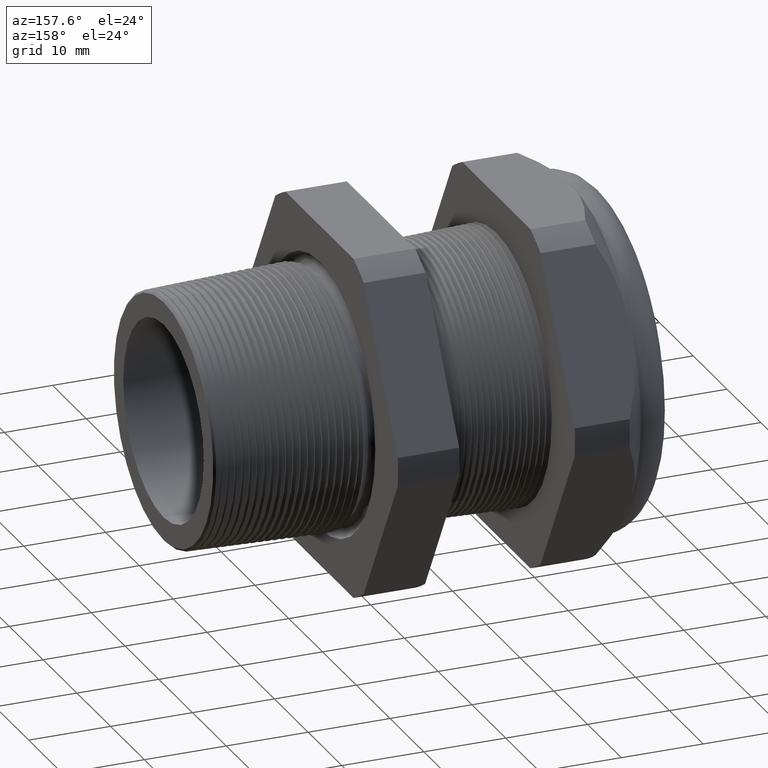
[diagram: clean part render]
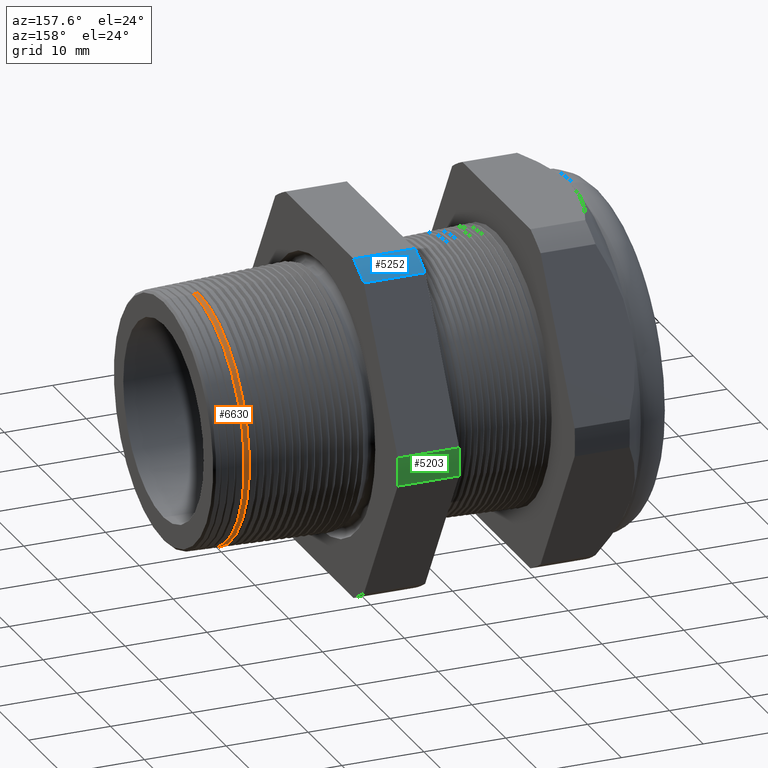
[diagram: same view with three faces highlighted in distinct colors, each labeled with its STEP entity id]
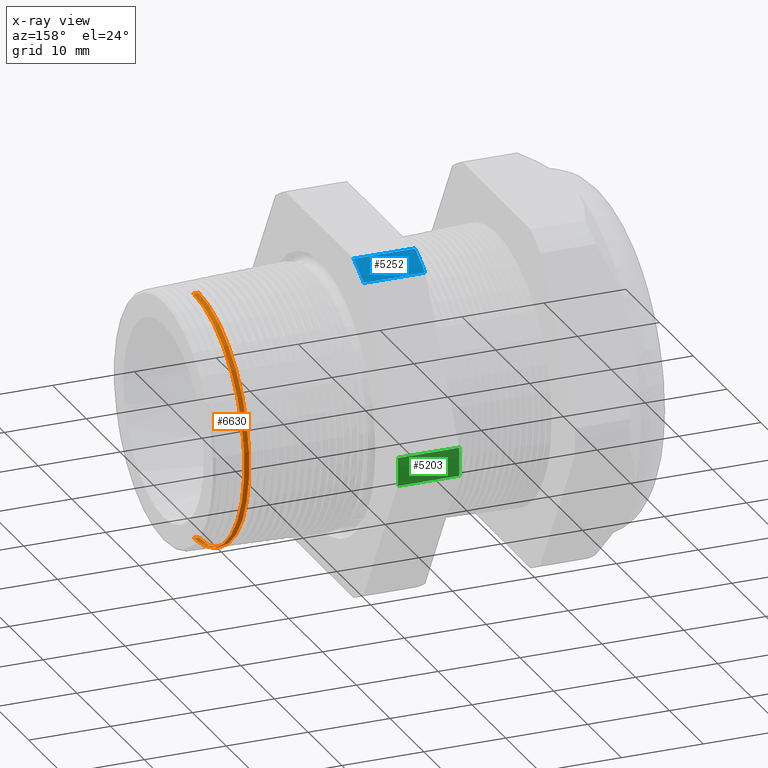
[diagram: x-ray of the same camera — body ghosted, the three highlighted faces saturated]
A machine part, auxiliary view with three faces highlighted in distinct colors.
The next image is the same camera in x-ray (body ghosted, the three faces saturated) — at least one of them is partly hidden behind the body in this view.
Their STEP definitions:

[orange] entity #6630 — the highlighted conical surface has half-angle 2 deg.
#102 = DIRECTION ( 'NONE',  ( 0.0000000000000000000, 0.0000000000000000000, 1.000000000000000000 ) ) ;
#103 = DIRECTION ( 'NONE',  ( -1.000000000000000000, 0.0000000000000000000, 0.0000000000000000000 ) ) ;
#104 = CARTESIAN_POINT ( 'NONE',  ( 0.4400000000000001100, 0.0000000000000000000, 0.0000000000000000000 ) ) ;
#105 = AXIS2_PLACEMENT_3D ( 'NONE', #104, #103, #102 ) ;
#106 = CONICAL_SURFACE ( 'NONE', #105, 0.5891157701456586300, 0.03490658503987943000 ) ;
#107 = FACE_OUTER_BOUND ( 'NONE', #6624, .T. ) ;
#109 = DIRECTION ( 'NONE',  ( -0.9993908270190959800, 4.273955692856265900E-018, -0.03489949670249381500 ) ) ;
#110 = VECTOR ( 'NONE', #109, 39.37007874015748100 ) ;
#111 = CARTESIAN_POINT ( 'NONE',  ( 0.4400000000000001100, 7.214587422361087700E-017, -0.5891157701456586300 ) ) ;
#112 = LINE ( 'NONE', #111, #110 ) ;
#113 = DIRECTION ( 'NONE',  ( -0.9993908270190959800, 0.0000000000000000000, 0.03489949670249381500 ) ) ;
#114 = VECTOR ( 'NONE', #113, 39.37007874015748100 ) ;
#115 = CARTESIAN_POINT ( 'NONE',  ( 0.4400000000000001100, 0.0000000000000000000, 0.5891157701456586300 ) ) ;
#116 = LINE ( 'NONE', #115, #114 ) ;
#1913 = DIRECTION ( 'NONE',  ( 0.0000000000000000000, 0.0000000000000000000, -1.000000000000000000 ) ) ;
#1914 = DIRECTION ( 'NONE',  ( -1.000000000000000000, 0.0000000000000000000, 0.0000000000000000000 ) ) ;
#1915 = CARTESIAN_POINT ( 'NONE',  ( 0.2726611505627726300, 0.0000000000000000000, 0.0000000000000000000 ) ) ;
#1916 = AXIS2_PLACEMENT_3D ( 'NONE', #1915, #1914, #1913 ) ;
#1917 = CIRCLE ( 'NONE', #1916, 0.5949593715338691300 ) ;
#1937 = CARTESIAN_POINT ( 'NONE',  ( 0.2726611505627726300, 0.0000000000000000000, 0.5949593715338691300 ) ) ;
#1938 = CARTESIAN_POINT ( 'NONE',  ( 0.2962567958232280000, 7.281105489069516300E-017, -0.5941353934447198800 ) ) ;
#1944 = CARTESIAN_POINT ( 'NONE',  ( 0.2726611505627726300, 7.286150899716736700E-017, -0.5949593715338691300 ) ) ;
#1945 = DIRECTION ( 'NONE',  ( 0.0000000000000000000, 0.0000000000000000000, 1.000000000000000000 ) ) ;
#1946 = DIRECTION ( 'NONE',  ( 1.000000000000000000, 0.0000000000000000000, 0.0000000000000000000 ) ) ;
#1947 = CARTESIAN_POINT ( 'NONE',  ( 0.2962567958232280000, 0.0000000000000000000, 0.0000000000000000000 ) ) ;
#1948 = AXIS2_PLACEMENT_3D ( 'NONE', #1947, #1946, #1945 ) ;
#1949 = CIRCLE ( 'NONE', #1948, 0.5941353934447198800 ) ;
#1958 = CARTESIAN_POINT ( 'NONE',  ( 0.2962567958232280000, 0.0000000000000000000, 0.5941353934447198800 ) ) ;
#6623 = EDGE_CURVE ( 'NONE', #7843, #7857, #116, .T. ) ;
#6624 = EDGE_LOOP ( 'NONE', ( #6625, #6631, #6627, #6628 ) ) ;
#6625 = ORIENTED_EDGE ( 'NONE', *, *, #7850, .F. ) ;
#6626 = EDGE_CURVE ( 'NONE', #7856, #7852, #112, .T. ) ;
#6627 = ORIENTED_EDGE ( 'NONE', *, *, #7832, .F. ) ;
#6628 = ORIENTED_EDGE ( 'NONE', *, *, #6623, .F. ) ;
#6630 = ADVANCED_FACE ( 'NONE', ( #107 ), #106, .T. ) ;
#6631 = ORIENTED_EDGE ( 'NONE', *, *, #6626, .T. ) ;
#7832 = EDGE_CURVE ( 'NONE', #7857, #7852, #1917, .T. ) ;
#7843 = VERTEX_POINT ( 'NONE', #1958 ) ;
#7850 = EDGE_CURVE ( 'NONE', #7856, #7843, #1949, .T. ) ;
#7852 = VERTEX_POINT ( 'NONE', #1944 ) ;
#7856 = VERTEX_POINT ( 'NONE', #1938 ) ;
#7857 = VERTEX_POINT ( 'NONE', #1937 ) ;

[blue] entity #5252 — the highlighted cylindrical surface (partial cylindrical patch) has radius 23.26 mm, axis along (-1, 0, 0).
#3570 = CARTESIAN_POINT ( 'NONE',  ( -0.3100000000000000000, 0.3974582525247153400, 0.8249999999999998400 ) ) ;
#3571 = DIRECTION ( 'NONE',  ( 0.0000000000000000000, 0.0000000000000000000, -1.000000000000000000 ) ) ;
#3572 = DIRECTION ( 'NONE',  ( 1.000000000000000000, 0.0000000000000000000, 0.0000000000000000000 ) ) ;
#3573 = CARTESIAN_POINT ( 'NONE',  ( -0.3100000000000000000, 0.0000000000000000000, 0.0000000000000000000 ) ) ;
#3574 = AXIS2_PLACEMENT_3D ( 'NONE', #3573, #3572, #3571 ) ;
#3575 = CIRCLE ( 'NONE', #3574, 0.9157500000000000600 ) ;
#3589 = CARTESIAN_POINT ( 'NONE',  ( -0.3100000000000000000, 0.5157418318598044900, 0.7567089436301736000 ) ) ;
#3712 = CARTESIAN_POINT ( 'NONE',  ( -0.6052755905511810800, 0.5157418318598044900, 0.7567089436301736000 ) ) ;
#3818 = DIRECTION ( 'NONE',  ( 0.0000000000000000000, 0.0000000000000000000, 1.000000000000000000 ) ) ;
#3819 = DIRECTION ( 'NONE',  ( -1.000000000000000000, 0.0000000000000000000, 0.0000000000000000000 ) ) ;
#3820 = CARTESIAN_POINT ( 'NONE',  ( -0.6052755905511810800, 0.0000000000000000000, 0.0000000000000000000 ) ) ;
#3821 = AXIS2_PLACEMENT_3D ( 'NONE', #3820, #3819, #3818 ) ;
#3822 = CIRCLE ( 'NONE', #3821, 0.9157500000000000600 ) ;
#3824 = CARTESIAN_POINT ( 'NONE',  ( -0.6052755905511810800, 0.3974582525247153400, 0.8249999999999998400 ) ) ;
#3833 = DIRECTION ( 'NONE',  ( -1.000000000000000000, 0.0000000000000000000, 0.0000000000000000000 ) ) ;
#3834 = VECTOR ( 'NONE', #3833, 39.37007874015748100 ) ;
#3835 = CARTESIAN_POINT ( 'NONE',  ( 0.4399999999999999500, 0.3974582525247153400, 0.8249999999999998400 ) ) ;
#3837 = DIRECTION ( 'NONE',  ( 0.0000000000000000000, 0.0000000000000000000, 1.000000000000000000 ) ) ;
#3838 = DIRECTION ( 'NONE',  ( -1.000000000000000000, 0.0000000000000000000, 0.0000000000000000000 ) ) ;
#3839 = CARTESIAN_POINT ( 'NONE',  ( 0.4399999999999999500, 0.0000000000000000000, 0.0000000000000000000 ) ) ;
#3840 = AXIS2_PLACEMENT_3D ( 'NONE', #3839, #3838, #3837 ) ;
#3841 = LINE ( 'NONE', #3835, #3834 ) ;
#3842 = CYLINDRICAL_SURFACE ( 'NONE', #3840, 0.9157500000000000600 ) ;
#3843 = FACE_OUTER_BOUND ( 'NONE', #5253, .T. ) ;
#3874 = DIRECTION ( 'NONE',  ( -1.000000000000000000, 0.0000000000000000000, 0.0000000000000000000 ) ) ;
#3875 = VECTOR ( 'NONE', #3874, 39.37007874015748100 ) ;
#3876 = CARTESIAN_POINT ( 'NONE',  ( 0.4399999999999999500, 0.5157418318598044900, 0.7567089436301736000 ) ) ;
#3877 = LINE ( 'NONE', #3876, #3875 ) ;
#5080 = EDGE_CURVE ( 'NONE', #5107, #5081, #3575, .T. ) ;
#5081 = VERTEX_POINT ( 'NONE', #3570 ) ;
#5107 = VERTEX_POINT ( 'NONE', #3589 ) ;
#5168 = VERTEX_POINT ( 'NONE', #3712 ) ;
#5224 = VERTEX_POINT ( 'NONE', #3824 ) ;
#5226 = EDGE_CURVE ( 'NONE', #5224, #5168, #3822, .T. ) ;
#5252 = ADVANCED_FACE ( 'NONE', ( #3843 ), #3842, .T. ) ;
#5253 = EDGE_LOOP ( 'NONE', ( #5254, #5255, #5256, #5258 ) ) ;
#5254 = ORIENTED_EDGE ( 'NONE', *, *, #5274, .T. ) ;
#5255 = ORIENTED_EDGE ( 'NONE', *, *, #5226, .F. ) ;
#5256 = ORIENTED_EDGE ( 'NONE', *, *, #5257, .F. ) ;
#5257 = EDGE_CURVE ( 'NONE', #5081, #5224, #3841, .T. ) ;
#5258 = ORIENTED_EDGE ( 'NONE', *, *, #5080, .F. ) ;
#5274 = EDGE_CURVE ( 'NONE', #5107, #5168, #3877, .T. ) ;

[green] entity #5203 — the highlighted cylindrical surface (partial cylindrical patch) has radius 23.26 mm, axis along (-1, 0, 0).
#3594 = CARTESIAN_POINT ( 'NONE',  ( -0.3100000000000000000, 0.9132000843845192700, 0.06829105636982647800 ) ) ;
#3595 = DIRECTION ( 'NONE',  ( 0.0000000000000000000, 0.0000000000000000000, -1.000000000000000000 ) ) ;
#3596 = DIRECTION ( 'NONE',  ( 1.000000000000000000, 0.0000000000000000000, 0.0000000000000000000 ) ) ;
#3597 = CARTESIAN_POINT ( 'NONE',  ( -0.3100000000000000000, 0.0000000000000000000, 0.0000000000000000000 ) ) ;
#3598 = AXIS2_PLACEMENT_3D ( 'NONE', #3597, #3596, #3595 ) ;
#3599 = CIRCLE ( 'NONE', #3598, 0.9157499999999999500 ) ;
#3600 = CARTESIAN_POINT ( 'NONE',  ( -0.3100000000000000000, 0.9132000843845194900, -0.06829105636982671400 ) ) ;
#3705 = CARTESIAN_POINT ( 'NONE',  ( -0.6052755905511810800, 0.9132000843845193800, -0.06829105636982670000 ) ) ;
#3706 = DIRECTION ( 'NONE',  ( 0.0000000000000000000, 0.0000000000000000000, 1.000000000000000000 ) ) ;
#3707 = DIRECTION ( 'NONE',  ( -1.000000000000000000, 0.0000000000000000000, 0.0000000000000000000 ) ) ;
#3708 = CARTESIAN_POINT ( 'NONE',  ( -0.6052755905511810800, 0.0000000000000000000, 0.0000000000000000000 ) ) ;
#3709 = AXIS2_PLACEMENT_3D ( 'NONE', #3708, #3707, #3706 ) ;
#3710 = CIRCLE ( 'NONE', #3709, 0.9157499999999999500 ) ;
#3711 = CARTESIAN_POINT ( 'NONE',  ( -0.6052755905511810800, 0.9132000843845192700, 0.06829105636982647800 ) ) ;
#3731 = CYLINDRICAL_SURFACE ( 'NONE', #3796, 0.9157499999999999500 ) ;
#3732 = FACE_OUTER_BOUND ( 'NONE', #5204, .T. ) ;
#3793 = DIRECTION ( 'NONE',  ( 0.0000000000000000000, 0.0000000000000000000, 1.000000000000000000 ) ) ;
#3794 = DIRECTION ( 'NONE',  ( -1.000000000000000000, 0.0000000000000000000, 0.0000000000000000000 ) ) ;
#3795 = CARTESIAN_POINT ( 'NONE',  ( 0.4399999999999999500, 0.0000000000000000000, 0.0000000000000000000 ) ) ;
#3796 = AXIS2_PLACEMENT_3D ( 'NONE', #3795, #3794, #3793 ) ;
#3884 = DIRECTION ( 'NONE',  ( -1.000000000000000000, 0.0000000000000000000, 0.0000000000000000000 ) ) ;
#3885 = VECTOR ( 'NONE', #3884, 39.37007874015748100 ) ;
#3886 = CARTESIAN_POINT ( 'NONE',  ( 0.4399999999999999500, 0.9132000843845192700, 0.06829105636982647800 ) ) ;
#3887 = LINE ( 'NONE', #3886, #3885 ) ;
#3888 = DIRECTION ( 'NONE',  ( -1.000000000000000000, 0.0000000000000000000, 0.0000000000000000000 ) ) ;
#3889 = VECTOR ( 'NONE', #3888, 39.37007874015748100 ) ;
#3890 = CARTESIAN_POINT ( 'NONE',  ( 0.4399999999999999500, 0.9132000843845193800, -0.06829105636982670000 ) ) ;
#3891 = LINE ( 'NONE', #3890, #3889 ) ;
#5101 = VERTEX_POINT ( 'NONE', #3600 ) ;
#5103 = EDGE_CURVE ( 'NONE', #5101, #5104, #3599, .T. ) ;
#5104 = VERTEX_POINT ( 'NONE', #3594 ) ;
#5169 = VERTEX_POINT ( 'NONE', #3711 ) ;
#5171 = EDGE_CURVE ( 'NONE', #5169, #5172, #3710, .T. ) ;
#5172 = VERTEX_POINT ( 'NONE', #3705 ) ;
#5203 = ADVANCED_FACE ( 'NONE', ( #3732 ), #3731, .T. ) ;
#5204 = EDGE_LOOP ( 'NONE', ( #5263, #5265, #5266, #5268 ) ) ;
#5263 = ORIENTED_EDGE ( 'NONE', *, *, #5264, .T. ) ;
#5264 = EDGE_CURVE ( 'NONE', #5101, #5172, #3891, .T. ) ;
#5265 = ORIENTED_EDGE ( 'NONE', *, *, #5171, .F. ) ;
#5266 = ORIENTED_EDGE ( 'NONE', *, *, #5267, .F. ) ;
#5267 = EDGE_CURVE ( 'NONE', #5104, #5169, #3887, .T. ) ;
#5268 = ORIENTED_EDGE ( 'NONE', *, *, #5103, .F. ) ;